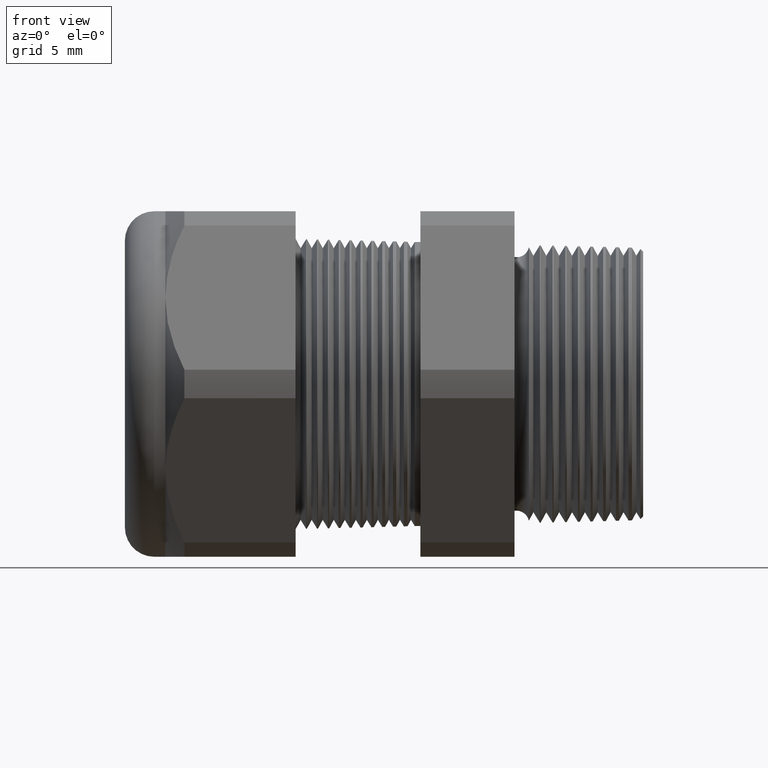
[diagram: clean part render]
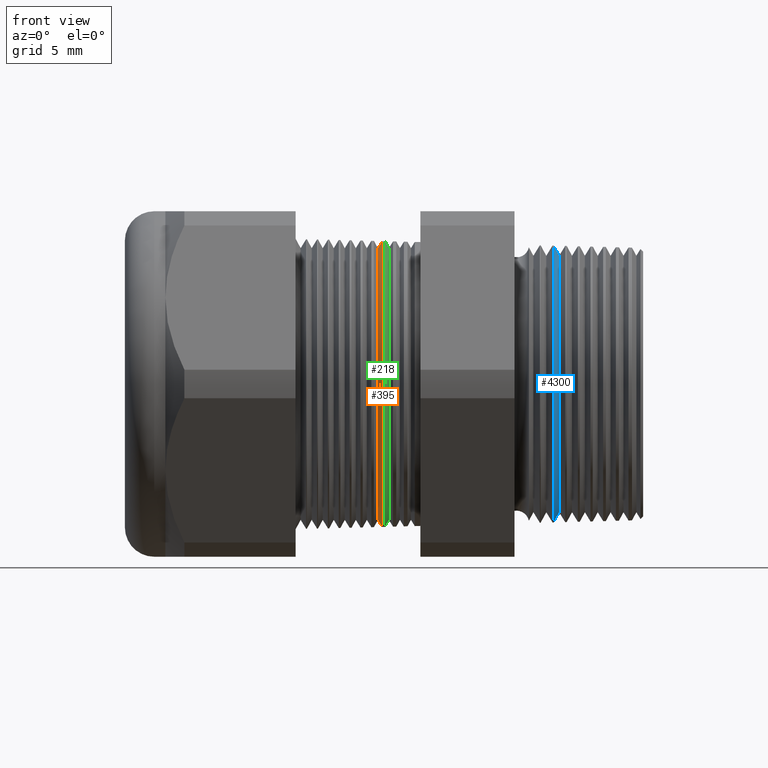
[diagram: same view with three faces highlighted in distinct colors, each labeled with its STEP entity id]
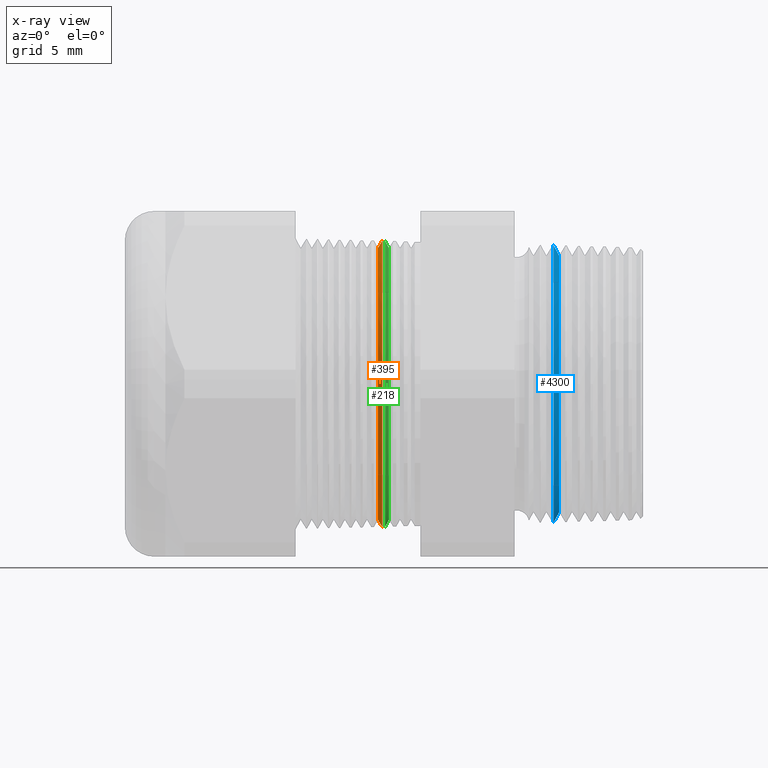
[diagram: x-ray of the same camera — body ghosted, the three highlighted faces saturated]
A machine part, front view with three faces highlighted in distinct colors.
The next image is the same camera in x-ray (body ghosted, the three faces saturated) — at least one of them is partly hidden behind the body in this view.
Their STEP definitions:

[orange] entity #395 — the highlighted conical surface has half-angle 58.5 deg.
#229 = ORIENTED_EDGE ( 'NONE', *, *, #4399, .T. ) ;
#383 = ORIENTED_EDGE ( 'NONE', *, *, #556, .F. ) ;
#385 = ORIENTED_EDGE ( 'NONE', *, *, #4819, .T. ) ;
#386 = ORIENTED_EDGE ( 'NONE', *, *, #396, .T. ) ;
#387 = EDGE_LOOP ( 'NONE', ( #383, #386, #385, #229 ) ) ;
#395 = ADVANCED_FACE ( 'NONE', ( #1646 ), #1645, .T. ) ;
#396 = EDGE_CURVE ( 'NONE', #533, #532, #1644, .T. ) ;
#532 = VERTEX_POINT ( 'NONE', #1916 ) ;
#533 = VERTEX_POINT ( 'NONE', #1915 ) ;
#541 = VERTEX_POINT ( 'NONE', #1960 ) ;
#556 = EDGE_CURVE ( 'NONE', #533, #541, #1994, .T. ) ;
#557 = VERTEX_POINT ( 'NONE', #1990 ) ;
#1636 = DIRECTION ( 'NONE',  ( 0.0000000000000000000, 0.0000000000000000000, -1.000000000000000000 ) ) ;
#1637 = DIRECTION ( 'NONE',  ( 1.000000000000000000, 0.0000000000000000000, 0.0000000000000000000 ) ) ;
#1638 = CARTESIAN_POINT ( 'NONE',  ( -0.6816586839320378800, 0.0000000000000000000, 0.0000000000000000000 ) ) ;
#1639 = AXIS2_PLACEMENT_3D ( 'NONE', #1638, #1637, #1636 ) ;
#1640 = DIRECTION ( 'NONE',  ( 0.0000000000000000000, 0.0000000000000000000, -1.000000000000000000 ) ) ;
#1641 = DIRECTION ( 'NONE',  ( 1.000000000000000000, 0.0000000000000000000, 0.0000000000000000000 ) ) ;
#1642 = CARTESIAN_POINT ( 'NONE',  ( -0.6816586839320378800, 0.0000000000000000000, 0.0000000000000000000 ) ) ;
#1643 = AXIS2_PLACEMENT_3D ( 'NONE', #1642, #1641, #1640 ) ;
#1644 = CIRCLE ( 'NONE', #1639, 0.3696307351718083900 ) ;
#1645 = CONICAL_SURFACE ( 'NONE', #1643, 0.3696307351718083900, 1.021017612416699200 ) ;
#1646 = FACE_OUTER_BOUND ( 'NONE', #387, .T. ) ;
#1915 = CARTESIAN_POINT ( 'NONE',  ( -0.6816586839320378800, 0.0000000000000000000, 0.3696307351718083900 ) ) ;
#1916 = CARTESIAN_POINT ( 'NONE',  ( -0.6816586839320378800, 4.647855336083582300E-017, -0.3696307351718083900 ) ) ;
#1960 = CARTESIAN_POINT ( 'NONE',  ( -0.6698920471679515900, 0.0000000000000000000, 0.3888321412271149000 ) ) ;
#1990 = CARTESIAN_POINT ( 'NONE',  ( -0.6698920471679515900, 4.761820371593978500E-017, -0.3888321412271149000 ) ) ;
#1991 = DIRECTION ( 'NONE',  ( 0.5224985647159348100, 1.044183048100722500E-016, 0.8526401643541007300 ) ) ;
#1992 = VECTOR ( 'NONE', #1991, 39.37007874015748900 ) ;
#1993 = CARTESIAN_POINT ( 'NONE',  ( -0.6816586839320378800, 4.526670966946381200E-017, 0.3696307351718083900 ) ) ;
#1994 = LINE ( 'NONE', #1993, #1992 ) ;
#3286 = DIRECTION ( 'NONE',  ( 0.0000000000000000000, 0.0000000000000000000, -1.000000000000000000 ) ) ;
#3287 = DIRECTION ( 'NONE',  ( -1.000000000000000000, 0.0000000000000000000, 0.0000000000000000000 ) ) ;
#3288 = CARTESIAN_POINT ( 'NONE',  ( -0.6698920471679515900, 0.0000000000000000000, 0.0000000000000000000 ) ) ;
#3289 = AXIS2_PLACEMENT_3D ( 'NONE', #3288, #3287, #3286 ) ;
#3290 = CIRCLE ( 'NONE', #3289, 0.3888321412271148500 ) ;
#4030 = VECTOR ( 'NONE', #4094, 39.37007874015748900 ) ;
#4031 = CARTESIAN_POINT ( 'NONE',  ( -0.6816586839320378800, 0.0000000000000000000, -0.3696307351718083900 ) ) ;
#4032 = LINE ( 'NONE', #4031, #4030 ) ;
#4094 = DIRECTION ( 'NONE',  ( 0.5224985647159348100, 0.0000000000000000000, -0.8526401643541007300 ) ) ;
#4399 = EDGE_CURVE ( 'NONE', #557, #541, #3290, .T. ) ;
#4819 = EDGE_CURVE ( 'NONE', #532, #557, #4032, .T. ) ;

[blue] entity #4300 — the highlighted conical surface has half-angle 61.5 deg.
#941 = EDGE_CURVE ( 'NONE', #949, #942, #2639, .T. ) ;
#942 = VERTEX_POINT ( 'NONE', #2699 ) ;
#943 = VERTEX_POINT ( 'NONE', #2698 ) ;
#949 = VERTEX_POINT ( 'NONE', #2690 ) ;
#956 = EDGE_CURVE ( 'NONE', #943, #957, #2683, .T. ) ;
#957 = VERTEX_POINT ( 'NONE', #2675 ) ;
#2639 = LINE ( 'NONE', #2702, #2701 ) ;
#2675 = CARTESIAN_POINT ( 'NONE',  ( -0.2034856000580643200, 4.612730346959606500E-017, -0.3766188585837356200 ) ) ;
#2676 = DIRECTION ( 'NONE',  ( -0.4771587602596179000, 1.076240564057388100E-016, -0.8788171126619600500 ) ) ;
#2677 = VECTOR ( 'NONE', #2676, 39.37007874015748900 ) ;
#2678 = CARTESIAN_POINT ( 'NONE',  ( -0.2049999999999999600, 4.646408372336645900E-017, -0.3794080363066033600 ) ) ;
#2683 = LINE ( 'NONE', #2678, #2677 ) ;
#2690 = CARTESIAN_POINT ( 'NONE',  ( -0.1884707356790752100, 0.0000000000000000000, 0.3489649185127733400 ) ) ;
#2698 = CARTESIAN_POINT ( 'NONE',  ( -0.1884707356790752100, 4.442919250672431100E-017, -0.3489649185127733400 ) ) ;
#2699 = CARTESIAN_POINT ( 'NONE',  ( -0.2034856000580643200, 0.0000000000000000000, 0.3766188585837356200 ) ) ;
#2700 = DIRECTION ( 'NONE',  ( -0.4771587602596179000, 0.0000000000000000000, 0.8788171126619600500 ) ) ;
#2701 = VECTOR ( 'NONE', #2700, 39.37007874015748900 ) ;
#2702 = CARTESIAN_POINT ( 'NONE',  ( -0.2049999999999999600, 0.0000000000000000000, 0.3794080363066033600 ) ) ;
#3059 = DIRECTION ( 'NONE',  ( 0.0000000000000000000, 0.0000000000000000000, 1.000000000000000000 ) ) ;
#3060 = DIRECTION ( 'NONE',  ( -1.000000000000000000, 0.0000000000000000000, 0.0000000000000000000 ) ) ;
#3061 = CARTESIAN_POINT ( 'NONE',  ( -0.2049999999999999600, 0.0000000000000000000, 0.0000000000000000000 ) ) ;
#3062 = AXIS2_PLACEMENT_3D ( 'NONE', #3061, #3060, #3059 ) ;
#3064 = CONICAL_SURFACE ( 'NONE', #3062, 0.3794080363066033600, 1.073377489976501800 ) ;
#3065 = FACE_OUTER_BOUND ( 'NONE', #4298, .T. ) ;
#3066 = DIRECTION ( 'NONE',  ( 0.0000000000000000000, 0.0000000000000000000, -1.000000000000000000 ) ) ;
#3067 = DIRECTION ( 'NONE',  ( 1.000000000000000000, 0.0000000000000000000, 0.0000000000000000000 ) ) ;
#3068 = AXIS2_PLACEMENT_3D ( 'NONE', #3073, #3067, #3066 ) ;
#3069 = CIRCLE ( 'NONE', #3068, 0.3489649185127733400 ) ;
#3073 = CARTESIAN_POINT ( 'NONE',  ( -0.1884707356790752100, 0.0000000000000000000, 0.0000000000000000000 ) ) ;
#3616 = CIRCLE ( 'NONE', #3678, 0.3766188585837356200 ) ;
#3675 = DIRECTION ( 'NONE',  ( 0.0000000000000000000, 0.0000000000000000000, 1.000000000000000000 ) ) ;
#3676 = DIRECTION ( 'NONE',  ( 1.000000000000000000, 0.0000000000000000000, 0.0000000000000000000 ) ) ;
#3677 = CARTESIAN_POINT ( 'NONE',  ( -0.2034856000580643200, 0.0000000000000000000, 0.0000000000000000000 ) ) ;
#3678 = AXIS2_PLACEMENT_3D ( 'NONE', #3677, #3676, #3675 ) ;
#4292 = ORIENTED_EDGE ( 'NONE', *, *, #4297, .F. ) ;
#4294 = ORIENTED_EDGE ( 'NONE', *, *, #956, .F. ) ;
#4296 = ORIENTED_EDGE ( 'NONE', *, *, #941, .T. ) ;
#4297 = EDGE_CURVE ( 'NONE', #949, #943, #3069, .T. ) ;
#4298 = EDGE_LOOP ( 'NONE', ( #4294, #4292, #4296, #4848 ) ) ;
#4300 = ADVANCED_FACE ( 'NONE', ( #3065 ), #3064, .T. ) ;
#4597 = EDGE_CURVE ( 'NONE', #942, #957, #3616, .T. ) ;
#4848 = ORIENTED_EDGE ( 'NONE', *, *, #4597, .T. ) ;

[green] entity #218 — the highlighted conical surface has half-angle 61.5 deg.
#202 = ORIENTED_EDGE ( 'NONE', *, *, #270, .F. ) ;
#203 = ORIENTED_EDGE ( 'NONE', *, *, #550, .F. ) ;
#217 = EDGE_LOOP ( 'NONE', ( #203, #202, #418, #419 ) ) ;
#218 = ADVANCED_FACE ( 'NONE', ( #1390 ), #1389, .T. ) ;
#270 = EDGE_CURVE ( 'NONE', #4830, #544, #1443, .T. ) ;
#418 = ORIENTED_EDGE ( 'NONE', *, *, #558, .T. ) ;
#419 = ORIENTED_EDGE ( 'NONE', *, *, #4402, .T. ) ;
#542 = VERTEX_POINT ( 'NONE', #1959 ) ;
#544 = VERTEX_POINT ( 'NONE', #1958 ) ;
#547 = VERTEX_POINT ( 'NONE', #1955 ) ;
#550 = EDGE_CURVE ( 'NONE', #544, #547, #1944, .T. ) ;
#558 = EDGE_CURVE ( 'NONE', #4830, #542, #1989, .T. ) ;
#1385 = DIRECTION ( 'NONE',  ( 0.0000000000000000000, 0.0000000000000000000, 1.000000000000000000 ) ) ;
#1386 = DIRECTION ( 'NONE',  ( -1.000000000000000000, 0.0000000000000000000, 0.0000000000000000000 ) ) ;
#1387 = CARTESIAN_POINT ( 'NONE',  ( -0.6654330708661419000, 0.0000000000000000000, 0.0000000000000000000 ) ) ;
#1388 = AXIS2_PLACEMENT_3D ( 'NONE', #1387, #1386, #1385 ) ;
#1389 = CONICAL_SURFACE ( 'NONE', #1388, 0.3950000000000000200, 1.073377489976495400 ) ;
#1390 = FACE_OUTER_BOUND ( 'NONE', #217, .T. ) ;
#1440 = DIRECTION ( 'NONE',  ( 1.000000000000000000, 0.0000000000000000000, 0.0000000000000000000 ) ) ;
#1441 = CARTESIAN_POINT ( 'NONE',  ( -0.6516586839320377400, 0.0000000000000000000, 0.0000000000000000000 ) ) ;
#1442 = AXIS2_PLACEMENT_3D ( 'NONE', #1441, #1440, #1502 ) ;
#1443 = CIRCLE ( 'NONE', #1442, 0.3696307351718083900 ) ;
#1502 = DIRECTION ( 'NONE',  ( 0.0000000000000000000, 0.0000000000000000000, -1.000000000000000000 ) ) ;
#1941 = DIRECTION ( 'NONE',  ( -0.4771587602596235600, 1.076240564057384600E-016, -0.8788171126619570600 ) ) ;
#1942 = VECTOR ( 'NONE', #1941, 39.37007874015748900 ) ;
#1943 = CARTESIAN_POINT ( 'NONE',  ( -0.6654330708661419000, 4.837354856632045600E-017, -0.3950000000000000200 ) ) ;
#1944 = LINE ( 'NONE', #1943, #1942 ) ;
#1955 = CARTESIAN_POINT ( 'NONE',  ( -0.6619715852845746700, 4.760550384735147600E-017, -0.3886247366334451000 ) ) ;
#1958 = CARTESIAN_POINT ( 'NONE',  ( -0.6516586839320377400, 4.642975682411349600E-017, -0.3696307351718083900 ) ) ;
#1959 = CARTESIAN_POINT ( 'NONE',  ( -0.6619715852845746700, 0.0000000000000000000, 0.3886247366334451000 ) ) ;
#1986 = DIRECTION ( 'NONE',  ( -0.4771587602596235600, 0.0000000000000000000, 0.8788171126619570600 ) ) ;
#1987 = VECTOR ( 'NONE', #1986, 39.37007874015748900 ) ;
#1988 = CARTESIAN_POINT ( 'NONE',  ( -0.6654330708661419000, 0.0000000000000000000, 0.3950000000000000200 ) ) ;
#1989 = LINE ( 'NONE', #1988, #1987 ) ;
#3275 = DIRECTION ( 'NONE',  ( 0.0000000000000000000, 0.0000000000000000000, 1.000000000000000000 ) ) ;
#3276 = DIRECTION ( 'NONE',  ( 1.000000000000000000, 0.0000000000000000000, 0.0000000000000000000 ) ) ;
#3277 = CARTESIAN_POINT ( 'NONE',  ( -0.6619715852845746700, 0.0000000000000000000, 0.0000000000000000000 ) ) ;
#3278 = AXIS2_PLACEMENT_3D ( 'NONE', #3277, #3276, #3275 ) ;
#3283 = CIRCLE ( 'NONE', #3278, 0.3886247366334451000 ) ;
#4083 = CARTESIAN_POINT ( 'NONE',  ( -0.6516586839320377400, 0.0000000000000000000, 0.3696307351718083900 ) ) ;
#4402 = EDGE_CURVE ( 'NONE', #542, #547, #3283, .T. ) ;
#4830 = VERTEX_POINT ( 'NONE', #4083 ) ;